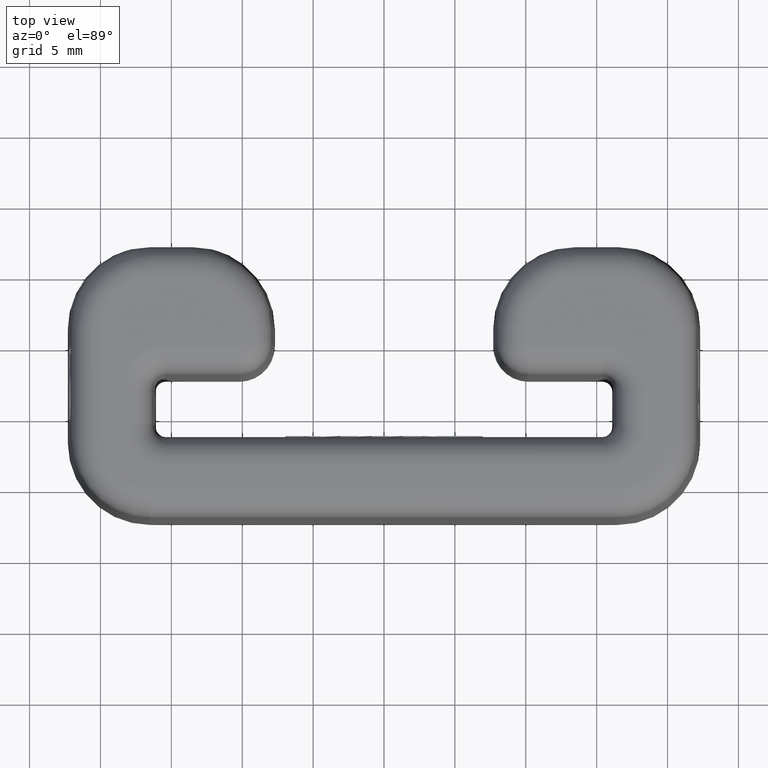
[diagram: clean part render]
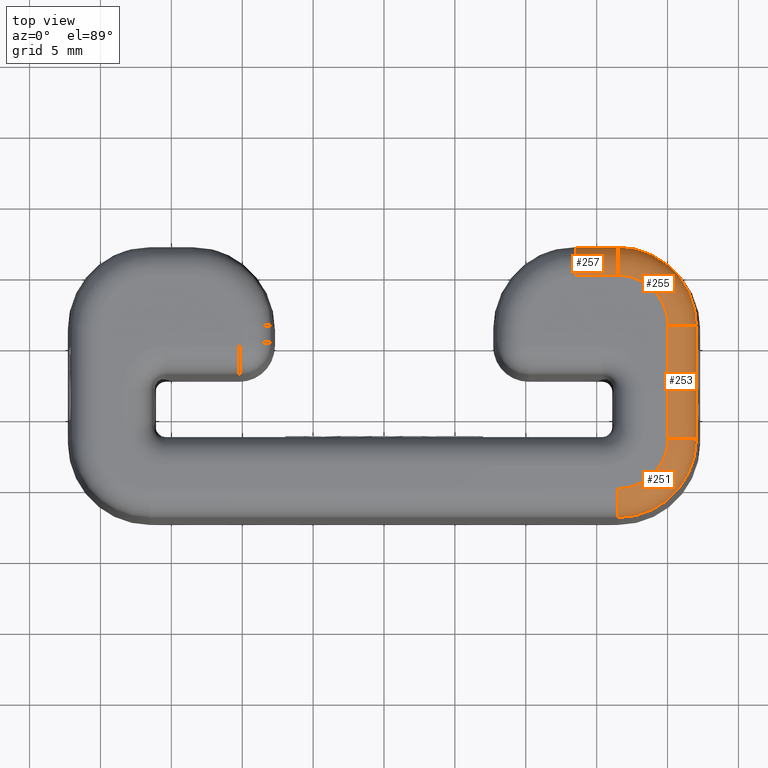
[diagram: same view with one multi-face feature highlighted, each face labeled with its STEP entity id]
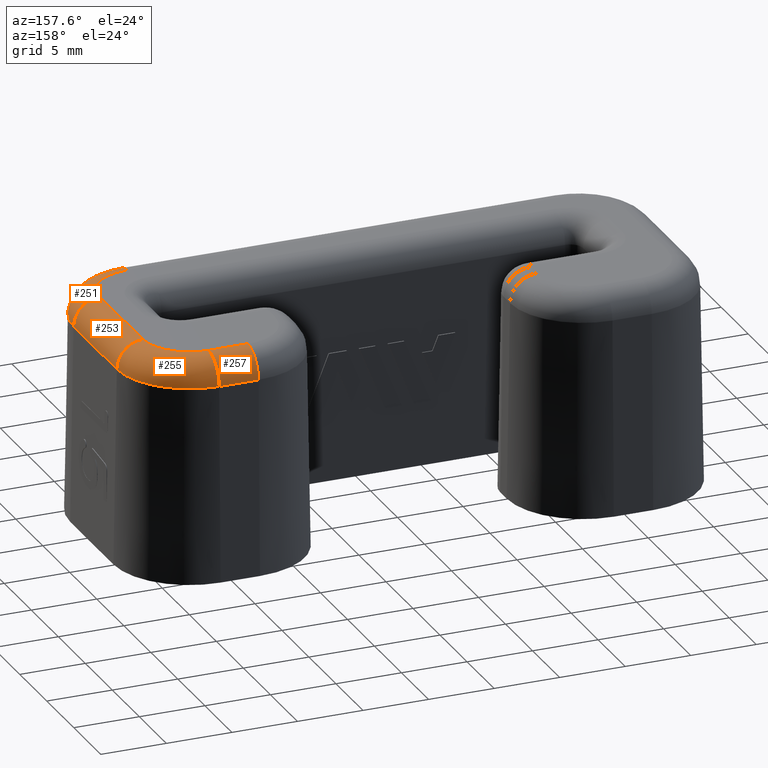
[diagram: same view with one multi-face feature highlighted, each face labeled with its STEP entity id]
A machine part, top view. The highlighted faces form ONE feature: a constant-radius fillet chain: 4 tangent blend faces with common blend radius 2 mm. The faces share edges in the B-rep.
A second angle (auxiliary view) of the same feature is appended — it is thin or edge-on in the first view.
Their STEP definitions:
[1] entity #257 (Cylinder):
#257=ADVANCED_FACE('',(#561),#562,.T.);
#561=FACE_OUTER_BOUND('',#983,.T.);
#562=CYLINDRICAL_SURFACE('',#984,2.0);
#983=EDGE_LOOP('',(#2200,#2201,#2202,#2203));
#984=AXIS2_PLACEMENT_3D('',#2204,#2205,#2206);
#2200=ORIENTED_EDGE('',*,*,#3139,.T.);
#2201=ORIENTED_EDGE('',*,*,#3140,.F.);
#2202=ORIENTED_EDGE('',*,*,#3133,.F.);
#2203=ORIENTED_EDGE('',*,*,#3141,.F.);
#2204=CARTESIAN_POINT('',(-16.5,15.0346054737687,15.0));
#2205=DIRECTION('',(-1.0,-0.0,-0.0));
#2206=DIRECTION('',(0.0,0.0,-1.0));
#3133=EDGE_CURVE('',#3778,#3779,#3780,.T.);
#3139=EDGE_CURVE('',#3788,#3789,#3790,.T.);
#3140=EDGE_CURVE('',#3779,#3789,#3791,.F.);
#3141=EDGE_CURVE('',#3788,#3778,#3792,.F.);
#3778=VERTEX_POINT('',#5304);
#3779=VERTEX_POINT('',#5305);
#3780=CIRCLE('',#5306,2.0);
#3788=VERTEX_POINT('',#5314);
#3789=VERTEX_POINT('',#5315);
#3790=CIRCLE('',#5316,2.0);
#3791=LINE('',#5317,#5318);
#3792=LINE('',#5319,#5320);
#5304=CARTESIAN_POINT('',(16.5,17.0343008640814,15.0349048128745));
#5305=CARTESIAN_POINT('',(16.5,15.0346054737687,17.0));
#5306=AXIS2_PLACEMENT_3D('',#5952,#5953,#5954);
#5314=CARTESIAN_POINT('',(13.5,17.0343008640814,15.0349048128745));
#5315=CARTESIAN_POINT('',(13.5,15.0346054737687,17.0));
#5316=AXIS2_PLACEMENT_3D('',#5970,#5971,#5972);
#5317=CARTESIAN_POINT('',(-16.5,15.0346054737687,17.0));
#5318=VECTOR('',#5973,1000.0);
#5319=CARTESIAN_POINT('',(-16.5,17.0343008640814,15.0349048128745));
#5320=VECTOR('',#5974,1000.0);
#5952=CARTESIAN_POINT('',(16.5,15.0346054737687,15.0));
#5953=DIRECTION('',(1.0,0.0,0.0));
#5954=DIRECTION('',(0.0,0.0,-1.0));
#5970=CARTESIAN_POINT('',(13.5,15.0346054737687,15.0));
#5971=DIRECTION('',(1.0,0.0,0.0));
#5972=DIRECTION('',(0.0,0.0,-1.0));
#5973=DIRECTION('',(1.0,0.0,0.0));
#5974=DIRECTION('',(-1.0,0.0,0.0));
[2] entity #255 (Torus):
#255=ADVANCED_FACE('',(#557),#558,.T.);
#557=FACE_OUTER_BOUND('',#979,.T.);
#558=TOROIDAL_SURFACE('',#980,3.53460547376863,2.0);
#979=EDGE_LOOP('',(#2186,#2187,#2188,#2189));
#980=AXIS2_PLACEMENT_3D('',#2190,#2191,#2192);
#2186=ORIENTED_EDGE('',*,*,#3133,.T.);
#2187=ORIENTED_EDGE('',*,*,#3134,.F.);
#2188=ORIENTED_EDGE('',*,*,#3127,.F.);
#2189=ORIENTED_EDGE('',*,*,#3135,.F.);
#2190=CARTESIAN_POINT('',(16.5,11.5,15.0));
#2191=DIRECTION('',(0.0,0.0,1.0));
#2192=DIRECTION('',(1.0,0.0,0.0));
#3127=EDGE_CURVE('',#3768,#3769,#3770,.T.);
#3133=EDGE_CURVE('',#3778,#3779,#3780,.T.);
#3134=EDGE_CURVE('',#3769,#3779,#3781,.T.);
#3135=EDGE_CURVE('',#3778,#3768,#3782,.F.);
#3768=VERTEX_POINT('',#5290);
#3769=VERTEX_POINT('',#5291);
#3770=CIRCLE('',#5292,2.0);
#3778=VERTEX_POINT('',#5304);
#3779=VERTEX_POINT('',#5305);
#3780=CIRCLE('',#5306,2.0);
#3781=CIRCLE('',#5307,3.53460547376863);
#3782=CIRCLE('',#5308,5.53430086408141);
#5290=CARTESIAN_POINT('',(22.0343008640814,11.5,15.0349048128745));
#5291=CARTESIAN_POINT('',(20.0346054737686,11.5,17.0));
#5292=AXIS2_PLACEMENT_3D('',#5942,#5943,#5944);
#5304=CARTESIAN_POINT('',(16.5,17.0343008640814,15.0349048128745));
#5305=CARTESIAN_POINT('',(16.5,15.0346054737687,17.0));
#5306=AXIS2_PLACEMENT_3D('',#5952,#5953,#5954);
#5307=AXIS2_PLACEMENT_3D('',#5955,#5956,#5957);
#5308=AXIS2_PLACEMENT_3D('',#5958,#5959,#5960);
#5942=CARTESIAN_POINT('',(20.0346054737686,11.5,15.0));
#5943=DIRECTION('',(0.0,-1.0,0.0));
#5944=DIRECTION('',(0.0,0.0,-1.0));
#5952=CARTESIAN_POINT('',(16.5,15.0346054737687,15.0));
#5953=DIRECTION('',(1.0,0.0,0.0));
#5954=DIRECTION('',(0.0,0.0,-1.0));
#5955=CARTESIAN_POINT('',(16.5,11.5,17.0));
#5956=DIRECTION('',(0.0,0.0,1.0));
#5957=DIRECTION('',(1.0,0.0,0.0));
#5958=CARTESIAN_POINT('',(16.5,11.5,15.0349048128745));
#5959=DIRECTION('',(0.0,0.0,1.0));
#5960=DIRECTION('',(1.0,0.0,0.0));
[3] entity #253 (Cylinder):
#253=ADVANCED_FACE('',(#553),#554,.T.);
#553=FACE_OUTER_BOUND('',#975,.T.);
#554=CYLINDRICAL_SURFACE('',#976,2.0);
#975=EDGE_LOOP('',(#2172,#2173,#2174,#2175));
#976=AXIS2_PLACEMENT_3D('',#2176,#2177,#2178);
#2172=ORIENTED_EDGE('',*,*,#3127,.T.);
#2173=ORIENTED_EDGE('',*,*,#3128,.F.);
#2174=ORIENTED_EDGE('',*,*,#3121,.F.);
#2175=ORIENTED_EDGE('',*,*,#3129,.F.);
#2176=CARTESIAN_POINT('',(20.0346054737686,3.5,15.0));
#2177=DIRECTION('',(-0.0,1.0,0.0));
#2178=DIRECTION('',(0.0,0.0,-1.0));
#3121=EDGE_CURVE('',#3758,#3759,#3760,.T.);
#3127=EDGE_CURVE('',#3768,#3769,#3770,.T.);
#3128=EDGE_CURVE('',#3759,#3769,#3771,.F.);
#3129=EDGE_CURVE('',#3768,#3758,#3772,.F.);
#3758=VERTEX_POINT('',#5280);
#3759=VERTEX_POINT('',#5281);
#3760=CIRCLE('',#5282,2.0);
#3768=VERTEX_POINT('',#5290);
#3769=VERTEX_POINT('',#5291);
#3770=CIRCLE('',#5292,2.0);
#3771=LINE('',#5293,#5294);
#3772=LINE('',#5295,#5296);
#5280=CARTESIAN_POINT('',(22.0343008640814,3.5,15.0349048128745));
#5281=CARTESIAN_POINT('',(20.0346054737687,3.5,17.0));
#5282=AXIS2_PLACEMENT_3D('',#5924,#5925,#5926);
#5290=CARTESIAN_POINT('',(22.0343008640814,11.5,15.0349048128745));
#5291=CARTESIAN_POINT('',(20.0346054737686,11.5,17.0));
#5292=AXIS2_PLACEMENT_3D('',#5942,#5943,#5944);
#5293=CARTESIAN_POINT('',(20.0346054737686,3.5,17.0));
#5294=VECTOR('',#5945,1000.0);
#5295=CARTESIAN_POINT('',(22.0343008640814,-2.0,15.0349048128745));
#5296=VECTOR('',#5946,1000.0);
#5924=CARTESIAN_POINT('',(20.0346054737686,3.5,15.0));
#5925=DIRECTION('',(0.0,-1.0,0.0));
#5926=DIRECTION('',(0.0,0.0,-1.0));
#5942=CARTESIAN_POINT('',(20.0346054737686,11.5,15.0));
#5943=DIRECTION('',(0.0,-1.0,0.0));
#5944=DIRECTION('',(0.0,0.0,-1.0));
#5945=DIRECTION('',(0.0,-1.0,0.0));
#5946=DIRECTION('',(0.0,1.0,0.0));
[4] entity #251 (Torus):
#251=ADVANCED_FACE('',(#549),#550,.T.);
#549=FACE_OUTER_BOUND('',#971,.T.);
#550=TOROIDAL_SURFACE('',#972,3.53460547376867,2.0);
#971=EDGE_LOOP('',(#2158,#2159,#2160,#2161));
#972=AXIS2_PLACEMENT_3D('',#2162,#2163,#2164);
#2158=ORIENTED_EDGE('',*,*,#3121,.T.);
#2159=ORIENTED_EDGE('',*,*,#3122,.F.);
#2160=ORIENTED_EDGE('',*,*,#3116,.F.);
#2161=ORIENTED_EDGE('',*,*,#3123,.F.);
#2162=CARTESIAN_POINT('',(16.5,3.5,15.0));
#2163=DIRECTION('',(0.0,0.0,1.0));
#2164=DIRECTION('',(1.0,0.0,0.0));
#3116=EDGE_CURVE('',#3731,#3750,#3751,.T.);
#3121=EDGE_CURVE('',#3758,#3759,#3760,.T.);
#3122=EDGE_CURVE('',#3750,#3759,#3761,.T.);
#3123=EDGE_CURVE('',#3758,#3731,#3762,.F.);
#3731=VERTEX_POINT('',#5245);
#3750=VERTEX_POINT('',#5269);
#3751=CIRCLE('',#5270,2.0);
#3758=VERTEX_POINT('',#5280);
#3759=VERTEX_POINT('',#5281);
#3760=CIRCLE('',#5282,2.0);
#3761=CIRCLE('',#5283,3.53460547376867);
#3762=CIRCLE('',#5284,5.53430086408145);
#5245=CARTESIAN_POINT('',(16.5,-2.03430086408141,15.0349048128745));
#5269=CARTESIAN_POINT('',(16.5,-0.0346054737686194,17.0));
#5270=AXIS2_PLACEMENT_3D('',#5915,#5916,#5917);
#5280=CARTESIAN_POINT('',(22.0343008640814,3.5,15.0349048128745));
#5281=CARTESIAN_POINT('',(20.0346054737687,3.5,17.0));
#5282=AXIS2_PLACEMENT_3D('',#5924,#5925,#5926);
#5283=AXIS2_PLACEMENT_3D('',#5927,#5928,#5929);
#5284=AXIS2_PLACEMENT_3D('',#5930,#5931,#5932);
#5915=CARTESIAN_POINT('',(16.5,-0.0346054737686489,15.0));
#5916=DIRECTION('',(-1.0,0.0,0.0));
#5917=DIRECTION('',(0.0,0.0,1.0));
#5924=CARTESIAN_POINT('',(20.0346054737686,3.5,15.0));
#5925=DIRECTION('',(0.0,-1.0,0.0));
#5926=DIRECTION('',(0.0,0.0,-1.0));
#5927=CARTESIAN_POINT('',(16.5,3.5,17.0));
#5928=DIRECTION('',(0.0,0.0,1.0));
#5929=DIRECTION('',(1.0,0.0,0.0));
#5930=CARTESIAN_POINT('',(16.5,3.5,15.0349048128745));
#5931=DIRECTION('',(0.0,0.0,1.0));
#5932=DIRECTION('',(1.0,0.0,0.0));